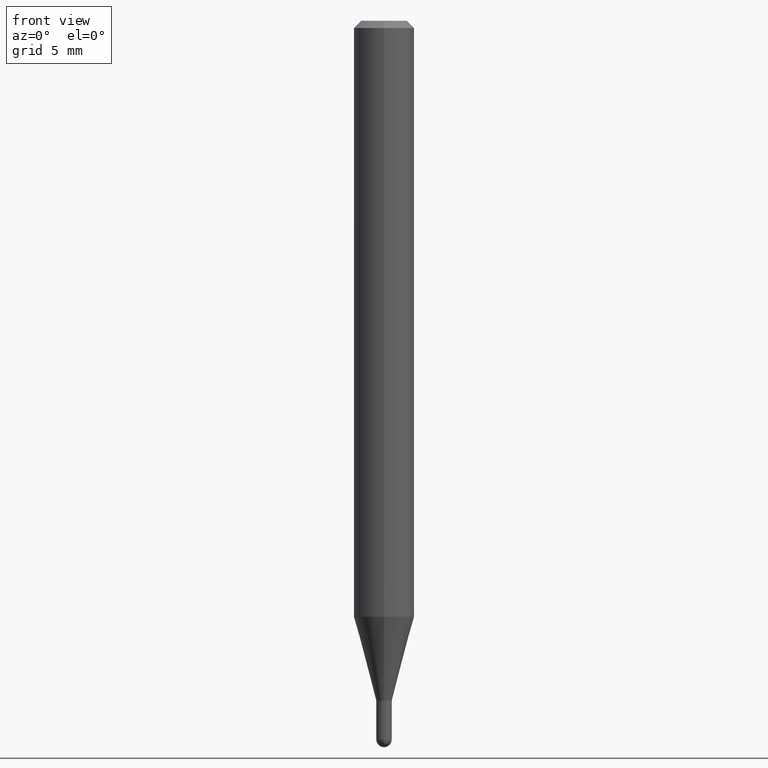
[diagram: clean part render]
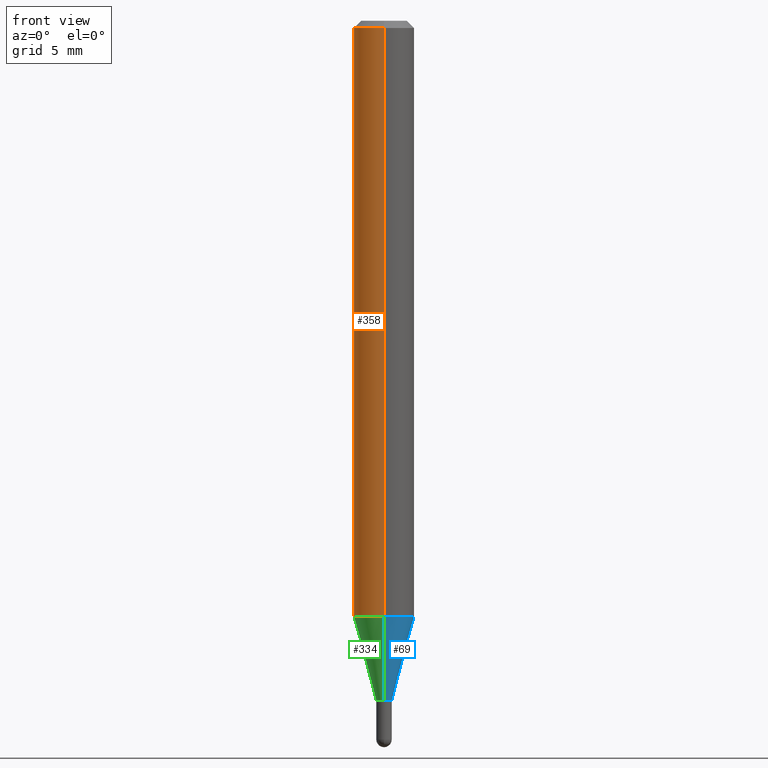
[diagram: same view with three faces highlighted in distinct colors, each labeled with its STEP entity id]
A machine part, front view with three faces highlighted in distinct colors.
Their STEP definitions:

[orange] entity #358 — the highlighted cylindrical surface (edge-blend (fillet) strip) has radius 1.5875 mm, axis along (-0, 0, 1).
#14 = DIRECTION ( 'NONE',  ( -2.445476360010259663E-29, 3.491470521335632447E-15, 1.000000000000000000 ) ) ;
#31 = CARTESIAN_POINT ( 'NONE',  ( 4.440892098500924943E-16, 0.06249999999999567707, -1.230459637448052979 ) ) ;
#35 = CIRCLE ( 'NONE', #325, 0.06250000000000000000 ) ;
#37 = VERTEX_POINT ( 'NONE', #452 ) ;
#75 = CARTESIAN_POINT ( 'NONE',  ( -4.364351673553912750E-16, -0.06250000000000005551, -0.01499999999999979128 ) ) ;
#77 = CYLINDRICAL_SURFACE ( 'NONE', #476, 0.06250000000000000000 ) ;
#82 = DIRECTION ( 'NONE',  ( -2.445476360010259663E-29, 3.491470521335632447E-15, 1.000000000000000000 ) ) ;
#113 = CARTESIAN_POINT ( 'NONE',  ( -4.364351673553615941E-16, -0.06250000000000430211, -1.230459637448052534 ) ) ;
#119 = VECTOR ( 'NONE', #82, 39.37007874015748143 ) ;
#131 = ORIENTED_EDGE ( 'NONE', *, *, #340, .T. ) ;
#133 = AXIS2_PLACEMENT_3D ( 'NONE', #151, #188, #237 ) ;
#144 = EDGE_CURVE ( 'NONE', #239, #37, #342, .T. ) ;
#151 = CARTESIAN_POINT ( 'NONE',  ( 3.009059955326007696E-29, -4.296113551843206303E-15, -1.230459637448052757 ) ) ;
#154 = ORIENTED_EDGE ( 'NONE', *, *, #144, .F. ) ;
#168 = DIRECTION ( 'NONE',  ( -6.982962677686265922E-15, -1.000000000000000000, 3.483106191921935554E-15 ) ) ;
#181 = CIRCLE ( 'NONE', #133, 0.06250000000000000000 ) ;
#188 = DIRECTION ( 'NONE',  ( -2.445476360010259663E-29, 3.491470521335632447E-15, 1.000000000000000000 ) ) ;
#231 = CARTESIAN_POINT ( 'NONE',  ( 0.000000000000000000, 0.000000000000000000, 0.000000000000000000 ) ) ;
#237 = DIRECTION ( 'NONE',  ( -6.982962677686265922E-15, -1.000000000000000000, 4.370956789862821150E-15 ) ) ;
#239 = VERTEX_POINT ( 'NONE', #31 ) ;
#248 = ORIENTED_EDGE ( 'NONE', *, *, #312, .T. ) ;
#256 = DIRECTION ( 'NONE',  ( -2.445476360010259663E-29, 3.491470521335632447E-15, 1.000000000000000000 ) ) ;
#262 = CARTESIAN_POINT ( 'NONE',  ( 4.440892098500625669E-16, 0.06250000000000000000, -2.182169075834770279E-16 ) ) ;
#274 = EDGE_LOOP ( 'NONE', ( #154, #248, #131, #365 ) ) ;
#312 = EDGE_CURVE ( 'NONE', #239, #353, #181, .T. ) ;
#314 = LINE ( 'NONE', #320, #119 ) ;
#320 = CARTESIAN_POINT ( 'NONE',  ( -4.364351673553916201E-16, -0.06250000000000000000, 2.182169075834770279E-16 ) ) ;
#325 = AXIS2_PLACEMENT_3D ( 'NONE', #338, #14, #168 ) ;
#338 = CARTESIAN_POINT ( 'NONE',  ( 3.668214540015391789E-31, -5.237205782003451554E-17, -0.01500000000000000812 ) ) ;
#340 = EDGE_CURVE ( 'NONE', #353, #355, #314, .T. ) ;
#342 = LINE ( 'NONE', #262, #431 ) ;
#353 = VERTEX_POINT ( 'NONE', #113 ) ;
#355 = VERTEX_POINT ( 'NONE', #75 ) ;
#358 = ADVANCED_FACE ( 'NONE', ( #474 ), #77, .T. ) ;
#365 = ORIENTED_EDGE ( 'NONE', *, *, #457, .F. ) ;
#387 = DIRECTION ( 'NONE',  ( -6.982962677686265922E-15, -1.000000000000000000, 3.491470521335632447E-15 ) ) ;
#431 = VECTOR ( 'NONE', #256, 39.37007874015748143 ) ;
#452 = CARTESIAN_POINT ( 'NONE',  ( 4.440892098500928887E-16, 0.06249999999999995837, -0.01500000000000022669 ) ) ;
#457 = EDGE_CURVE ( 'NONE', #37, #355, #35, .T. ) ;
#474 = FACE_OUTER_BOUND ( 'NONE', #274, .T. ) ;
#476 = AXIS2_PLACEMENT_3D ( 'NONE', #231, #511, #387 ) ;
#511 = DIRECTION ( 'NONE',  ( -2.445476360010259663E-29, 3.491470521335632447E-15, 1.000000000000000000 ) ) ;

[blue] entity #69 — the highlighted conical surface has half-angle 15 deg.
#7 = ORIENTED_EDGE ( 'NONE', *, *, #227, .T. ) ;
#11 = CIRCLE ( 'NONE', #209, 0.01599999999999992747 ) ;
#24 = DIRECTION ( 'NONE',  ( 1.839019923739650802E-15, 0.2588190451025320638, 0.9659258262890650926 ) ) ;
#31 = CARTESIAN_POINT ( 'NONE',  ( 4.440892098500924943E-16, 0.06249999999999567707, -1.230459637448052979 ) ) ;
#44 = DIRECTION ( 'NONE',  ( -6.982962677686265922E-15, -1.000000000000000000, 4.370956789862821150E-15 ) ) ;
#45 = VERTEX_POINT ( 'NONE', #254 ) ;
#49 = VERTEX_POINT ( 'NONE', #246 ) ;
#54 = VECTOR ( 'NONE', #24, 39.37007874015748854 ) ;
#63 = LINE ( 'NONE', #228, #54 ) ;
#69 = ADVANCED_FACE ( 'NONE', ( #141 ), #456, .T. ) ;
#96 = EDGE_CURVE ( 'NONE', #45, #49, #11, .T. ) ;
#98 = DIRECTION ( 'NONE',  ( -2.445476360010259663E-29, 3.491470521335632447E-15, 1.000000000000000000 ) ) ;
#113 = CARTESIAN_POINT ( 'NONE',  ( -4.364351673553615941E-16, -0.06250000000000430211, -1.230459637448052534 ) ) ;
#141 = FACE_OUTER_BOUND ( 'NONE', #331, .T. ) ;
#191 = DIRECTION ( 'NONE',  ( -2.445476360010259663E-29, 3.491470521335632447E-15, 1.000000000000000000 ) ) ;
#196 = ORIENTED_EDGE ( 'NONE', *, *, #289, .F. ) ;
#209 = AXIS2_PLACEMENT_3D ( 'NONE', #339, #419, #377 ) ;
#225 = VECTOR ( 'NONE', #386, 39.37007874015748143 ) ;
#227 = EDGE_CURVE ( 'NONE', #49, #239, #63, .T. ) ;
#228 = CARTESIAN_POINT ( 'NONE',  ( 1.136868377216498299E-16, 0.01599999999999502515, -1.404000000000000137 ) ) ;
#239 = VERTEX_POINT ( 'NONE', #31 ) ;
#245 = ORIENTED_EDGE ( 'NONE', *, *, #396, .F. ) ;
#246 = CARTESIAN_POINT ( 'NONE',  ( 2.788880237858713223E-16, 0.01599999999999502168, -1.404000000000000137 ) ) ;
#254 = CARTESIAN_POINT ( 'NONE',  ( -1.117274028429453889E-16, -0.01600000000000482980, -1.404000000000000137 ) ) ;
#273 = CARTESIAN_POINT ( 'NONE',  ( -1.117274028429453889E-16, -0.01600000000000482980, -1.404000000000000137 ) ) ;
#289 = EDGE_CURVE ( 'NONE', #45, #353, #471, .T. ) ;
#331 = EDGE_LOOP ( 'NONE', ( #402, #7, #245, #196 ) ) ;
#339 = CARTESIAN_POINT ( 'NONE',  ( 3.433448809454404700E-29, -4.902024611955227928E-15, -1.404000000000000137 ) ) ;
#345 = AXIS2_PLACEMENT_3D ( 'NONE', #498, #98, #381 ) ;
#353 = VERTEX_POINT ( 'NONE', #113 ) ;
#377 = DIRECTION ( 'NONE',  ( -6.982962677686264344E-15, -1.000000000000000000, 0.000000000000000000 ) ) ;
#381 = DIRECTION ( 'NONE',  ( -6.982962677686264344E-15, -1.000000000000000000, 0.000000000000000000 ) ) ;
#386 = DIRECTION ( 'NONE',  ( -1.807323732225380232E-15, -0.2588190451025253469, 0.9659258262890670910 ) ) ;
#390 = AXIS2_PLACEMENT_3D ( 'NONE', #392, #191, #44 ) ;
#392 = CARTESIAN_POINT ( 'NONE',  ( 3.009059955326007696E-29, -4.296113551843206303E-15, -1.230459637448052757 ) ) ;
#396 = EDGE_CURVE ( 'NONE', #353, #239, #497, .T. ) ;
#402 = ORIENTED_EDGE ( 'NONE', *, *, #96, .T. ) ;
#419 = DIRECTION ( 'NONE',  ( -2.445476360010259663E-29, 3.491470521335632447E-15, 1.000000000000000000 ) ) ;
#456 = CONICAL_SURFACE ( 'NONE', #345, 0.01599999999999992747, 0.2617993877991576790 ) ;
#471 = LINE ( 'NONE', #273, #225 ) ;
#497 = CIRCLE ( 'NONE', #390, 0.06250000000000000000 ) ;
#498 = CARTESIAN_POINT ( 'NONE',  ( 3.433448809454404700E-29, -4.902024611955227928E-15, -1.404000000000000137 ) ) ;

[green] entity #334 — the highlighted conical surface has half-angle 15 deg.
#24 = DIRECTION ( 'NONE',  ( 1.839019923739650802E-15, 0.2588190451025320638, 0.9659258262890650926 ) ) ;
#31 = CARTESIAN_POINT ( 'NONE',  ( 4.440892098500924943E-16, 0.06249999999999567707, -1.230459637448052979 ) ) ;
#42 = ORIENTED_EDGE ( 'NONE', *, *, #289, .T. ) ;
#45 = VERTEX_POINT ( 'NONE', #254 ) ;
#49 = VERTEX_POINT ( 'NONE', #246 ) ;
#54 = VECTOR ( 'NONE', #24, 39.37007874015748854 ) ;
#63 = LINE ( 'NONE', #228, #54 ) ;
#90 = EDGE_CURVE ( 'NONE', #49, #45, #283, .T. ) ;
#113 = CARTESIAN_POINT ( 'NONE',  ( -4.364351673553615941E-16, -0.06250000000000430211, -1.230459637448052534 ) ) ;
#133 = AXIS2_PLACEMENT_3D ( 'NONE', #151, #188, #237 ) ;
#151 = CARTESIAN_POINT ( 'NONE',  ( 3.009059955326007696E-29, -4.296113551843206303E-15, -1.230459637448052757 ) ) ;
#181 = CIRCLE ( 'NONE', #133, 0.06250000000000000000 ) ;
#188 = DIRECTION ( 'NONE',  ( -2.445476360010259663E-29, 3.491470521335632447E-15, 1.000000000000000000 ) ) ;
#200 = FACE_OUTER_BOUND ( 'NONE', #512, .T. ) ;
#211 = ORIENTED_EDGE ( 'NONE', *, *, #90, .T. ) ;
#224 = DIRECTION ( 'NONE',  ( -2.445476360010259663E-29, 3.491470521335632447E-15, 1.000000000000000000 ) ) ;
#225 = VECTOR ( 'NONE', #386, 39.37007874015748143 ) ;
#227 = EDGE_CURVE ( 'NONE', #49, #239, #63, .T. ) ;
#228 = CARTESIAN_POINT ( 'NONE',  ( 1.136868377216498299E-16, 0.01599999999999502515, -1.404000000000000137 ) ) ;
#234 = AXIS2_PLACEMENT_3D ( 'NONE', #465, #224, #413 ) ;
#237 = DIRECTION ( 'NONE',  ( -6.982962677686265922E-15, -1.000000000000000000, 4.370956789862821150E-15 ) ) ;
#239 = VERTEX_POINT ( 'NONE', #31 ) ;
#246 = CARTESIAN_POINT ( 'NONE',  ( 2.788880237858713223E-16, 0.01599999999999502168, -1.404000000000000137 ) ) ;
#254 = CARTESIAN_POINT ( 'NONE',  ( -1.117274028429453889E-16, -0.01600000000000482980, -1.404000000000000137 ) ) ;
#270 = ORIENTED_EDGE ( 'NONE', *, *, #227, .F. ) ;
#273 = CARTESIAN_POINT ( 'NONE',  ( -1.117274028429453889E-16, -0.01600000000000482980, -1.404000000000000137 ) ) ;
#279 = DIRECTION ( 'NONE',  ( -2.445476360010259663E-29, 3.491470521335632447E-15, 1.000000000000000000 ) ) ;
#283 = CIRCLE ( 'NONE', #234, 0.01599999999999992747 ) ;
#289 = EDGE_CURVE ( 'NONE', #45, #353, #471, .T. ) ;
#309 = DIRECTION ( 'NONE',  ( -6.982962677686264344E-15, -1.000000000000000000, 0.000000000000000000 ) ) ;
#312 = EDGE_CURVE ( 'NONE', #239, #353, #181, .T. ) ;
#332 = CONICAL_SURFACE ( 'NONE', #412, 0.01599999999999992747, 0.2617993877991576790 ) ;
#334 = ADVANCED_FACE ( 'NONE', ( #200 ), #332, .T. ) ;
#353 = VERTEX_POINT ( 'NONE', #113 ) ;
#386 = DIRECTION ( 'NONE',  ( -1.807323732225380232E-15, -0.2588190451025253469, 0.9659258262890670910 ) ) ;
#412 = AXIS2_PLACEMENT_3D ( 'NONE', #426, #279, #309 ) ;
#413 = DIRECTION ( 'NONE',  ( -6.982962677686264344E-15, -1.000000000000000000, 0.000000000000000000 ) ) ;
#426 = CARTESIAN_POINT ( 'NONE',  ( 3.433448809454404700E-29, -4.902024611955227928E-15, -1.404000000000000137 ) ) ;
#448 = ORIENTED_EDGE ( 'NONE', *, *, #312, .F. ) ;
#465 = CARTESIAN_POINT ( 'NONE',  ( 3.433448809454404700E-29, -4.902024611955227928E-15, -1.404000000000000137 ) ) ;
#471 = LINE ( 'NONE', #273, #225 ) ;
#512 = EDGE_LOOP ( 'NONE', ( #270, #211, #42, #448 ) ) ;